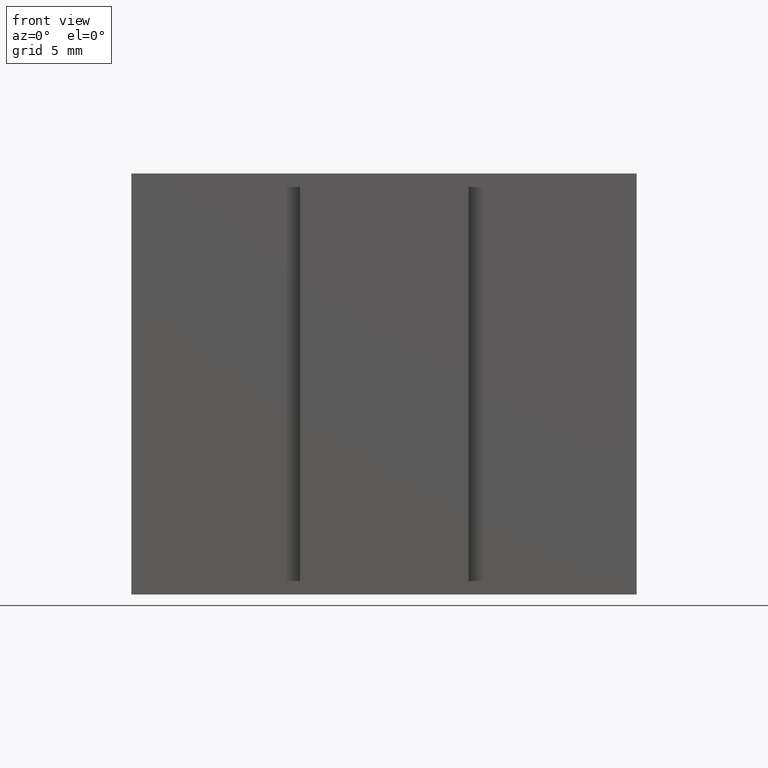
[diagram: clean part render]
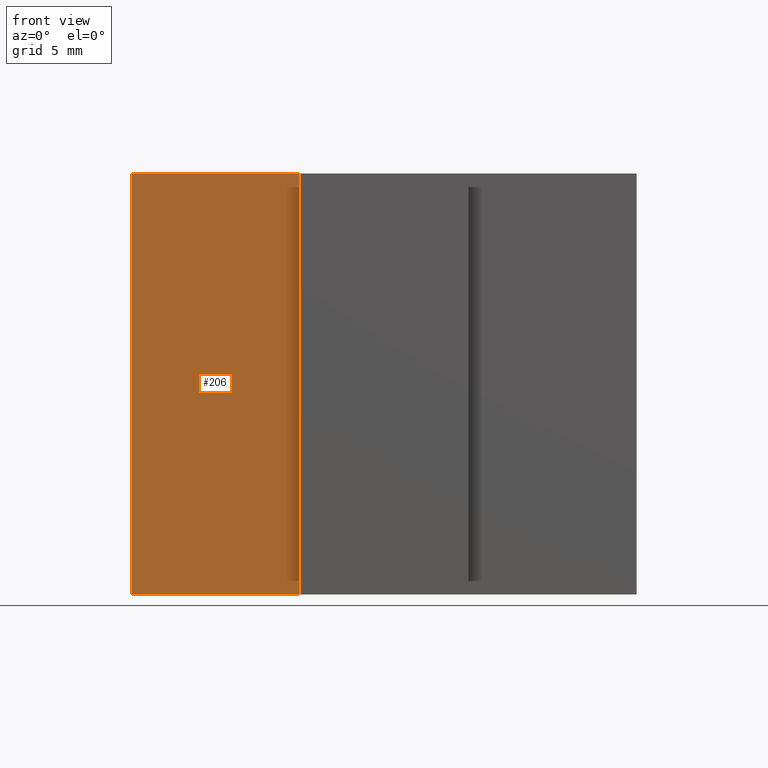
[diagram: same view with one face highlighted and labeled with its STEP entity id]
A machine part, front view. The second image highlights one B-rep face of the part: STEP entity #206.
In plain terms, the highlighted planar face has unit normal (0, -1, 0).
Its self-contained STEP definition (entity closure, byte-faithful):
#20=FACE_OUTER_BOUND('',#31,.T.);
#31=EDGE_LOOP('',(#158,#159,#160,#161));
#43=LINE('',#312,#70);
#53=LINE('',#331,#80);
#54=LINE('',#334,#81);
#55=LINE('',#335,#82);
#70=VECTOR('',#256,10.);
#80=VECTOR('',#272,10.);
#81=VECTOR('',#275,10.);
#82=VECTOR('',#276,10.);
#97=VERTEX_POINT('',#309);
#98=VERTEX_POINT('',#311);
#104=VERTEX_POINT('',#329);
#105=VERTEX_POINT('',#333);
#115=EDGE_CURVE('',#98,#97,#43,.T.);
#125=EDGE_CURVE('',#104,#97,#53,.T.);
#126=EDGE_CURVE('',#104,#105,#54,.T.);
#127=EDGE_CURVE('',#105,#98,#55,.T.);
#158=ORIENTED_EDGE('',*,*,#126,.T.);
#159=ORIENTED_EDGE('',*,*,#127,.T.);
#160=ORIENTED_EDGE('',*,*,#115,.T.);
#161=ORIENTED_EDGE('',*,*,#125,.F.);
#195=PLANE('',#240);
#206=ADVANCED_FACE('',(#20),#195,.T.);
#240=AXIS2_PLACEMENT_3D('',#332,#273,#274);
#256=DIRECTION('',(1.,6.93889390390723E-17,0.));
#272=DIRECTION('',(0.,0.,-1.));
#273=DIRECTION('center_axis',(6.93889390390723E-17,-1.,0.));
#274=DIRECTION('ref_axis',(0.,0.,-1.));
#275=DIRECTION('',(-1.,-6.93889390390723E-17,0.));
#276=DIRECTION('',(0.,0.,-1.));
#309=CARTESIAN_POINT('',(-4.,1.,-10.));
#311=CARTESIAN_POINT('',(-12.,1.,-10.));
#312=CARTESIAN_POINT('',(-4.,1.,-10.));
#329=CARTESIAN_POINT('',(-4.,1.,10.));
#331=CARTESIAN_POINT('',(-4.,1.,0.));
#332=CARTESIAN_POINT('Origin',(-4.,1.,0.));
#333=CARTESIAN_POINT('',(-12.,1.,10.));
#334=CARTESIAN_POINT('',(-4.,1.,10.));
#335=CARTESIAN_POINT('',(-12.,1.,0.));